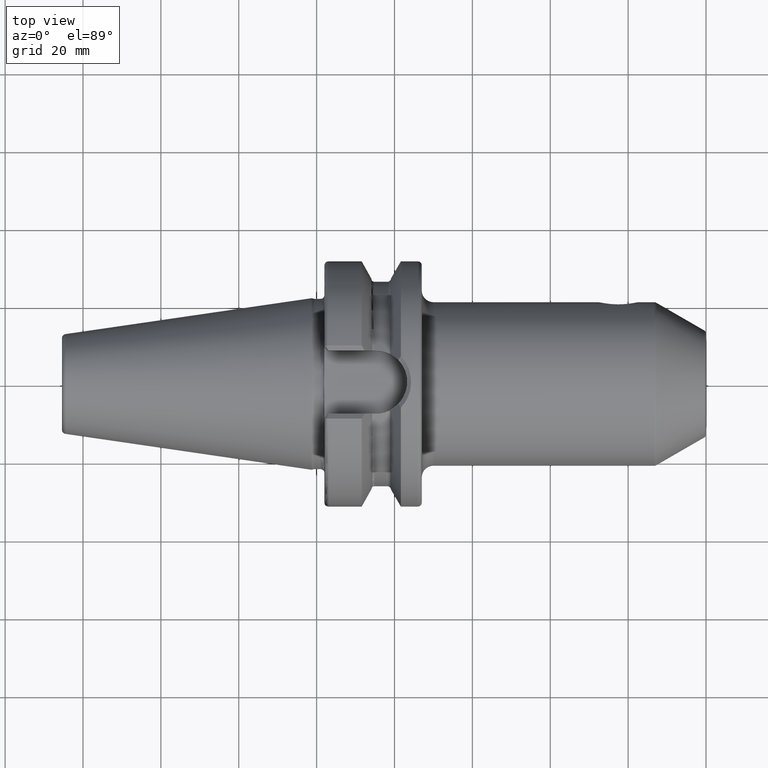
[diagram: clean part render]
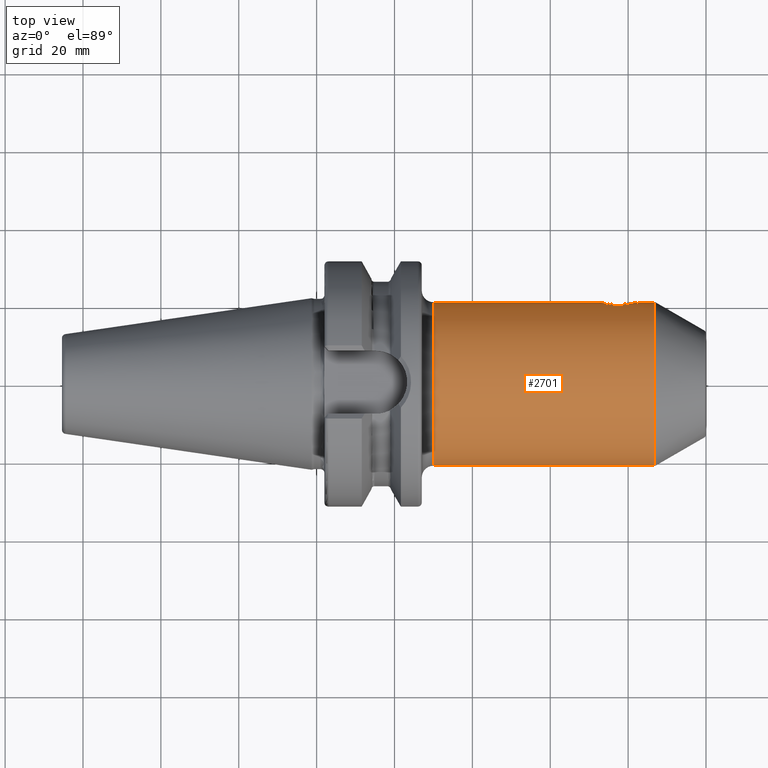
[diagram: same view with one face highlighted and labeled with its STEP entity id]
A machine part, top view. The second image highlights one B-rep face of the part: STEP entity #2701.
In plain terms, the highlighted cylindrical surface (partial cylindrical patch) has radius 21 mm, axis along (1, 0, 0).
Its self-contained STEP definition (entity closure, byte-faithful):
#856=CARTESIAN_POINT('',(8.673205080757E1,0.E0,0.E0));
#857=DIRECTION('',(-1.E0,0.E0,0.E0));
#858=DIRECTION('',(0.E0,-1.E0,0.E0));
#859=AXIS2_PLACEMENT_3D('',#856,#857,#858);
#861=CARTESIAN_POINT('',(3.E1,0.E0,0.E0));
#862=DIRECTION('',(1.E0,0.E0,0.E0));
#863=DIRECTION('',(0.E0,1.E0,0.E0));
#864=AXIS2_PLACEMENT_3D('',#861,#862,#863);
#866=CARTESIAN_POINT('',(8.26E1,2.1E1,0.E0));
#867=CARTESIAN_POINT('',(8.26E1,2.1E1,3.120960457094E-1));
#868=CARTESIAN_POINT('',(8.254405157569E1,2.098629631187E1,9.277540750244E-1));
#869=CARTESIAN_POINT('',(8.228674943035E1,2.092530028484E1,1.843127865260E0));
#870=CARTESIAN_POINT('',(8.186676442304E1,2.083217719970E1,2.691152731239E0));
#871=CARTESIAN_POINT('',(8.129107274376E1,2.071789082689E1,3.455393928899E0));
#872=CARTESIAN_POINT('',(8.058899801447E1,2.059954511458E1,4.095356947329E0));
#873=CARTESIAN_POINT('',(7.977268481567E1,2.049188629021E1,4.598251926772E0));
#874=CARTESIAN_POINT('',(7.889645590217E1,2.041239183945E1,4.935110303317E0));
#875=CARTESIAN_POINT('',(7.796540042654E1,2.036947426683E1,5.107402381131E0));
#876=CARTESIAN_POINT('',(7.703547553451E1,2.036945028573E1,5.107499857960E0));
#877=CARTESIAN_POINT('',(7.610422496736E1,2.041234825524E1,4.935281385181E0));
#878=CARTESIAN_POINT('',(7.522828676642E1,2.049177411857E1,4.598761889101E0));
#879=CARTESIAN_POINT('',(7.441131870341E1,2.059949832629E1,4.095563293182E0));
#880=CARTESIAN_POINT('',(7.370995930316E1,2.071770283216E1,3.456523622349E0));
#881=CARTESIAN_POINT('',(7.313340564231E1,2.083213624178E1,2.691492003236E0));
#882=CARTESIAN_POINT('',(7.271355162027E1,2.092523253092E1,1.843905100800E0));
#883=CARTESIAN_POINT('',(7.245590377569E1,2.098630578167E1,9.277598436030E-1));
#884=CARTESIAN_POINT('',(7.24E1,2.1E1,3.120869114732E-1));
#885=CARTESIAN_POINT('',(7.24E1,2.1E1,0.E0));
#902=DIRECTION('',(-1.E0,0.E0,4.692377701009E-13));
#903=VECTOR('',#902,4.132050807569E0);
#904=CARTESIAN_POINT('',(8.673205080757E1,2.1E1,-1.937628427748E-12));
#905=LINE('',#904,#903);
#927=DIRECTION('',(-1.E0,0.E0,3.472114498431E-14));
#928=VECTOR('',#927,4.24E1);
#929=CARTESIAN_POINT('',(7.24E1,2.1E1,0.E0));
#930=LINE('',#929,#928);
#936=DIRECTION('',(-1.E0,0.E0,-6.012692982096E-14));
#937=VECTOR('',#936,5.673205080757E1);
#938=CARTESIAN_POINT('',(8.673205080757E1,-2.1E1,1.936983976993E-12));
#939=LINE('',#938,#937);
#1527=VERTEX_POINT('',#866);
#1528=VERTEX_POINT('',#885);
#1535=CARTESIAN_POINT('',(3.E1,-2.1E1,0.E0));
#1536=CARTESIAN_POINT('',(3.E1,2.1E1,0.E0));
#1537=VERTEX_POINT('',#1535);
#1538=VERTEX_POINT('',#1536);
#1539=CARTESIAN_POINT('',(8.673205080757E1,2.1E1,0.E0));
#1540=CARTESIAN_POINT('',(8.673205080757E1,-2.1E1,0.E0));
#1541=VERTEX_POINT('',#1539);
#1542=VERTEX_POINT('',#1540);
#2683=CARTESIAN_POINT('',(2.335E1,0.E0,0.E0));
#2684=DIRECTION('',(1.E0,0.E0,0.E0));
#2685=DIRECTION('',(0.E0,-1.E0,0.E0));
#2686=AXIS2_PLACEMENT_3D('',#2683,#2684,#2685);
#2687=CYLINDRICAL_SURFACE('',#2686,2.1E1);
#2689=ORIENTED_EDGE('',*,*,#2688,.F.);
#2691=ORIENTED_EDGE('',*,*,#2690,.T.);
#2692=ORIENTED_EDGE('',*,*,#2675,.F.);
#2694=ORIENTED_EDGE('',*,*,#2693,.F.);
#2696=ORIENTED_EDGE('',*,*,#2695,.F.);
#2698=ORIENTED_EDGE('',*,*,#2697,.F.);
#2699=EDGE_LOOP('',(#2689,#2691,#2692,#2694,#2696,#2698));
#2700=FACE_OUTER_BOUND('',#2699,.F.);
#2701=ADVANCED_FACE('',(#2700),#2687,.T.);
#860=CIRCLE('',#859,2.1E1);
#865=CIRCLE('',#864,2.1E1);
#886=B_SPLINE_CURVE_WITH_KNOTS('',3,(#866,#867,#868,#869,#870,#871,#872,#873,
#874,#875,#876,#877,#878,#879,#880,#881,#882,#883,#884,#885),.UNSPECIFIED.,.F.,
.F.,(4,1,1,1,1,1,1,1,1,1,1,1,1,1,1,1,1,4),(0.E0,5.882352941176E-2,
1.176470588235E-1,1.764705882353E-1,2.352941176471E-1,2.941176470588E-1,
3.529411764706E-1,4.117647058824E-1,4.705882352941E-1,5.294117647059E-1,
5.882352941176E-1,6.470588235294E-1,7.058823529412E-1,7.647058823529E-1,
8.235294117647E-1,8.823529411765E-1,9.411764705882E-1,1.E0),.UNSPECIFIED.);
#2675=EDGE_CURVE('',#1538,#1537,#865,.T.);
#2688=EDGE_CURVE('',#1542,#1541,#860,.T.);
#2690=EDGE_CURVE('',#1542,#1537,#939,.T.);
#2693=EDGE_CURVE('',#1528,#1538,#930,.T.);
#2695=EDGE_CURVE('',#1527,#1528,#886,.T.);
#2697=EDGE_CURVE('',#1541,#1527,#905,.T.);